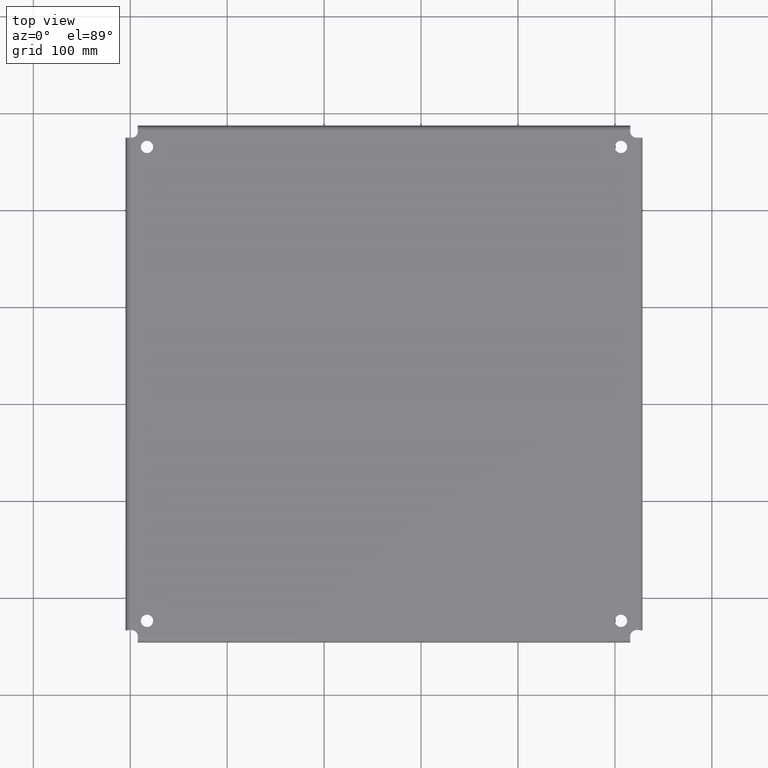
[diagram: clean part render]
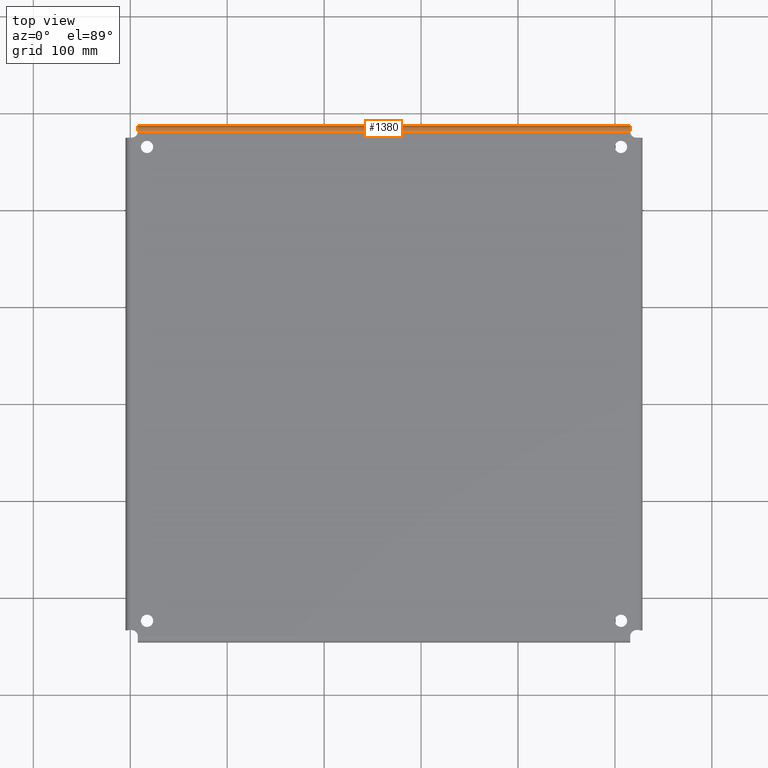
[diagram: same view with one face highlighted and labeled with its STEP entity id]
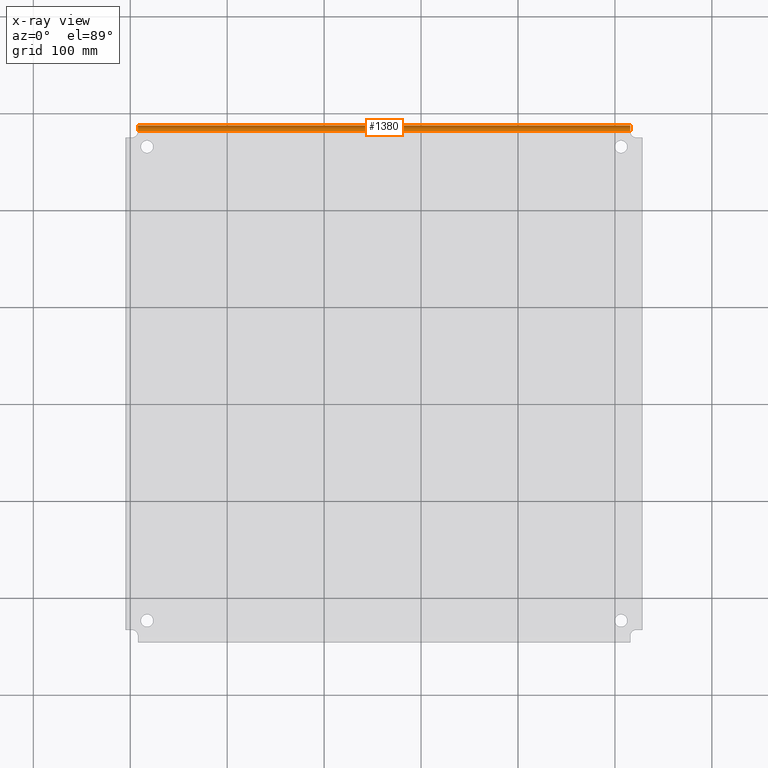
[diagram: x-ray of the same camera — body ghosted, the highlighted face saturated]
A machine part, top view. The second image highlights one B-rep face of the part: STEP entity #1380.
The next image is the same camera in x-ray: the body ghosted, the highlighted face saturated — about 0% of this face is hidden behind the body in this view.
In plain terms, the highlighted cylindrical surface (edge-blend (fillet) strip) has radius 5.842 mm, axis along (-1, 0, -0).
Its self-contained STEP definition (entity closure, byte-faithful):
#8 = EDGE_CURVE ( 'NONE', #418, #35, #894, .T. ) ;
#35 = VERTEX_POINT ( 'NONE', #1180 ) ;
#41 = DIRECTION ( 'NONE',  ( -1.000000000000000000, -0.0000000000000000000, -0.0000000000000000000 ) ) ;
#54 = VECTOR ( 'NONE', #55, 39.37007874015748100 ) ;
#55 = DIRECTION ( 'NONE',  ( 1.000000000000000000, -0.0000000000000000000, -0.0000000000000000000 ) ) ;
#57 = EDGE_CURVE ( 'NONE', #35, #1099, #609, .T. ) ;
#120 = ORIENTED_EDGE ( 'NONE', *, *, #128, .F. ) ;
#128 = EDGE_CURVE ( 'NONE', #1099, #788, #381, .T. ) ;
#158 = DIRECTION ( 'NONE',  ( -1.000000000000000000, 0.0000000000000000000, -0.0000000000000000000 ) ) ;
#193 = CARTESIAN_POINT ( 'NONE',  ( -23.31629661424701200, -24.11211278189821500, -29.37476460107778600 ) ) ;
#266 = DIRECTION ( 'NONE',  ( 0.0000000000000000000, 0.0000000000000000000, 1.000000000000000000 ) ) ;
#381 = LINE ( 'NONE', #739, #54 ) ;
#418 = VERTEX_POINT ( 'NONE', #549 ) ;
#492 = CARTESIAN_POINT ( 'NONE',  ( -23.81629661424700800, -24.34211278189821900, -29.37476460107778600 ) ) ;
#521 = EDGE_LOOP ( 'NONE', ( #1264, #120, #697, #1470 ) ) ;
#542 = EDGE_CURVE ( 'NONE', #788, #418, #799, .T. ) ;
#549 = CARTESIAN_POINT ( 'NONE',  ( -3.316296614246995400, -24.34211278189821900, -29.14476460107778500 ) ) ;
#550 = FACE_OUTER_BOUND ( 'NONE', #521, .T. ) ;
#587 = CARTESIAN_POINT ( 'NONE',  ( -23.81629661424700800, -24.34211278189821900, -29.14476460107778500 ) ) ;
#609 = CIRCLE ( 'NONE', #1141, 0.2300000000000005700 ) ;
#672 = DIRECTION ( 'NONE',  ( 1.000000000000000000, 0.0000000000000000000, 0.0000000000000000000 ) ) ;
#697 = ORIENTED_EDGE ( 'NONE', *, *, #57, .F. ) ;
#721 = CARTESIAN_POINT ( 'NONE',  ( -23.31629661424701200, -24.34211278189821900, -29.37476460107778600 ) ) ;
#739 = CARTESIAN_POINT ( 'NONE',  ( -23.81629661424700800, -24.11211278189821500, -29.37476460107778600 ) ) ;
#788 = VERTEX_POINT ( 'NONE', #1183 ) ;
#799 = CIRCLE ( 'NONE', #1161, 0.2300000000000005700 ) ;
#829 = AXIS2_PLACEMENT_3D ( 'NONE', #492, #158, #266 ) ;
#838 = DIRECTION ( 'NONE',  ( 0.0000000000000000000, 0.0000000000000000000, -1.000000000000000000 ) ) ;
#839 = VECTOR ( 'NONE', #1404, 39.37007874015748100 ) ;
#894 = LINE ( 'NONE', #587, #839 ) ;
#1099 = VERTEX_POINT ( 'NONE', #193 ) ;
#1141 = AXIS2_PLACEMENT_3D ( 'NONE', #721, #41, #838 ) ;
#1146 = CYLINDRICAL_SURFACE ( 'NONE', #829, 0.2300000000000005700 ) ;
#1161 = AXIS2_PLACEMENT_3D ( 'NONE', #1371, #672, #1473 ) ;
#1180 = CARTESIAN_POINT ( 'NONE',  ( -23.31629661424701200, -24.34211278189821900, -29.14476460107778500 ) ) ;
#1183 = CARTESIAN_POINT ( 'NONE',  ( -3.316296614246995400, -24.11211278189820800, -29.37476460107778600 ) ) ;
#1264 = ORIENTED_EDGE ( 'NONE', *, *, #542, .F. ) ;
#1371 = CARTESIAN_POINT ( 'NONE',  ( -3.316296614246993200, -24.34211278189821900, -29.37476460107778600 ) ) ;
#1380 = ADVANCED_FACE ( 'NONE', ( #550 ), #1146, .T. ) ;
#1404 = DIRECTION ( 'NONE',  ( -1.000000000000000000, 0.0000000000000000000, -0.0000000000000000000 ) ) ;
#1470 = ORIENTED_EDGE ( 'NONE', *, *, #8, .F. ) ;
#1473 = DIRECTION ( 'NONE',  ( 0.0000000000000000000, 0.0000000000000000000, 1.000000000000000000 ) ) ;